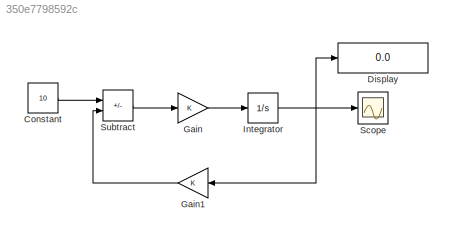
MODEL slx_350e7798592c
KIND model
CONFIG AbsTol = auto
CONFIG EnableMultiTasking = off
CONFIG FixedStep = auto
CONFIG MaxStep = auto
CONFIG MinStep = auto
CONFIG RelTol = 1e-3
CONFIG SampleTimeConstraint = Unconstrained
CONFIG SolverName = VariableStepAuto
CONFIG StartTime = 0.0
CONFIG StopTime = 10.0
BLOCK [Constant] Constant
  Value = 10
BLOCK [Display] Display
  Decimation = 1
BLOCK [Gain] Gain
BLOCK [Gain] Gain1
  NameLocation = top
BLOCK [Integrator] Integrator
BLOCK [Scope] Scope
  Floating = off
  NumInputPorts = 1
  ScopeSpecificationString = Simulink.scopes.TimeScopeBlockCfg('CurrentConfiguration', extmgr.ConfigurationSet(extmgr.Configuration('Core','General UI',true,'FigureColor',[1 1 1]),extmgr.Configuration('Core','Source UI',true),extmgr.Configuration('Sources','WiredSimulink',true),extmgr.Configuration('Visuals','Time Domain',true,'SerializedDisplays',{struct('MinYLimReal','-1.24994','MaxYLimReal','11.24949','YLabelReal','','MinY...<+1605ch>
BLOCK [Sum] Subtract
  IconShape = rectangular
  Inputs = +-
LINE Constant:1 -> Subtract:1
LINE Gain1:1 -> Subtract:2
LINE Gain:1 -> Integrator:1
NET Integrator:1 -> Display:1, Gain1:1, Scope:1
LINE Subtract:1 -> Gain:1
note: NET lines group one-source signal fan-out (src -> all destinations, sorted); 1:1 wires keep LINE
